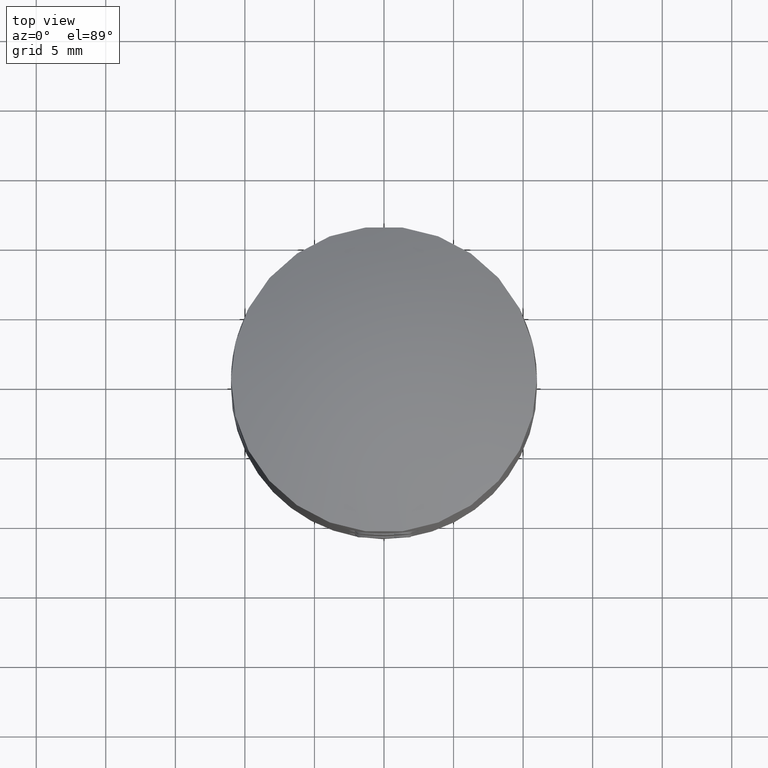
[diagram: clean part render]
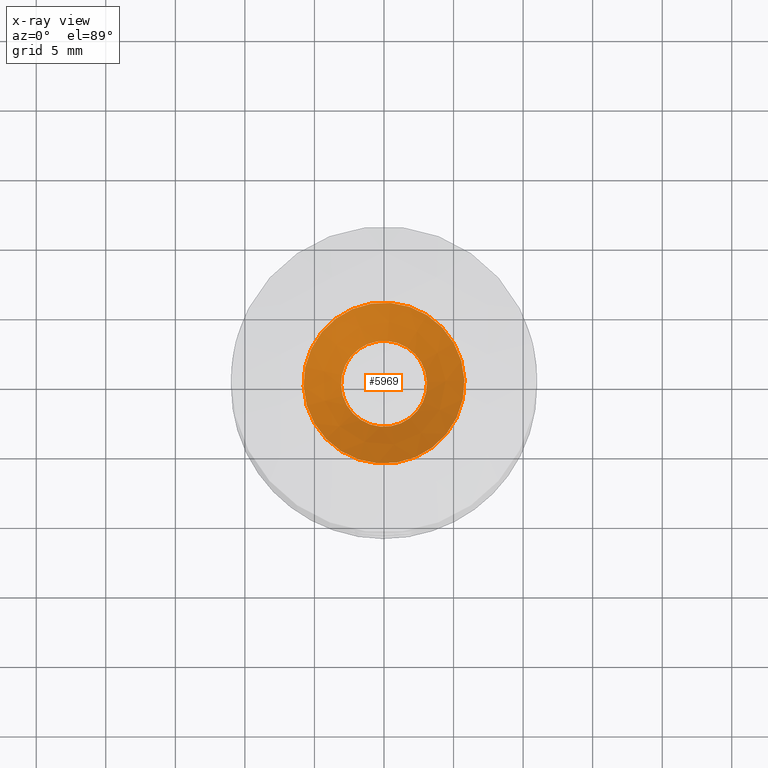
[diagram: x-ray — body ghosted, one internal face saturated and labeled with its STEP entity id]
A machine part, top view, then the same camera in x-ray: the body is ghosted and one INTERNAL B-rep face — a face not visible from any outside direction — is saturated and labeled: STEP entity #5969.
In plain terms, the highlighted conical surface has half-angle 45 deg.
Its self-contained STEP definition (entity closure, byte-faithful):
#228 = AXIS2_PLACEMENT_3D ( 'NONE', #9941, #3158, #6437 ) ;
#395 = ORIENTED_EDGE ( 'NONE', *, *, #3127, .F. ) ;
#986 = CARTESIAN_POINT ( 'NONE',  ( 0.5150000000000132200, 0.0000000000000000000, 5.785000000000000100 ) ) ;
#2650 = CARTESIAN_POINT ( 'NONE',  ( 3.212132034355964700, 0.0000000000000000000, 0.0000000000000000000 ) ) ;
#3127 = EDGE_CURVE ( 'NONE', #11507, #11507, #18233, .T. ) ;
#3158 = DIRECTION ( 'NONE',  ( -1.000000000000000000, -0.0000000000000000000, -0.0000000000000000000 ) ) ;
#3759 = ORIENTED_EDGE ( 'NONE', *, *, #4412, .T. ) ;
#4412 = EDGE_CURVE ( 'NONE', #5120, #5120, #15803, .T. ) ;
#5120 = VERTEX_POINT ( 'NONE', #7687 ) ;
#5819 = AXIS2_PLACEMENT_3D ( 'NONE', #8021, #18178, #16256 ) ;
#5969 = ADVANCED_FACE ( 'NONE', ( #9293, #21870 ), #16248, .T. ) ;
#6437 = DIRECTION ( 'NONE',  ( 0.0000000000000000000, 0.0000000000000000000, 1.000000000000000000 ) ) ;
#7644 = DIRECTION ( 'NONE',  ( -1.000000000000000000, -0.0000000000000000000, -0.0000000000000000000 ) ) ;
#7687 = CARTESIAN_POINT ( 'NONE',  ( 3.212132034355964700, 0.0000000000000000000, 3.087867965644036400 ) ) ;
#8021 = CARTESIAN_POINT ( 'NONE',  ( 0.5150000000000132200, 0.0000000000000000000, 0.0000000000000000000 ) ) ;
#8073 = EDGE_LOOP ( 'NONE', ( #395 ) ) ;
#9293 = FACE_BOUND ( 'NONE', #12886, .T. ) ;
#9941 = CARTESIAN_POINT ( 'NONE',  ( 0.5150000000000132200, 0.0000000000000000000, 0.0000000000000000000 ) ) ;
#11507 = VERTEX_POINT ( 'NONE', #986 ) ;
#12639 = DIRECTION ( 'NONE',  ( 0.0000000000000000000, 0.0000000000000000000, 1.000000000000000000 ) ) ;
#12886 = EDGE_LOOP ( 'NONE', ( #3759 ) ) ;
#14255 = AXIS2_PLACEMENT_3D ( 'NONE', #2650, #7644, #12639 ) ;
#15803 = CIRCLE ( 'NONE', #14255, 3.087867965644036400 ) ;
#16248 = CONICAL_SURFACE ( 'NONE', #5819, 5.785000000000000100, 0.7853981633974503900 ) ;
#16256 = DIRECTION ( 'NONE',  ( 0.0000000000000000000, 0.0000000000000000000, 1.000000000000000000 ) ) ;
#18178 = DIRECTION ( 'NONE',  ( -1.000000000000000000, -0.0000000000000000000, -0.0000000000000000000 ) ) ;
#18233 = CIRCLE ( 'NONE', #228, 5.785000000000000100 ) ;
#21870 = FACE_OUTER_BOUND ( 'NONE', #8073, .T. ) ;